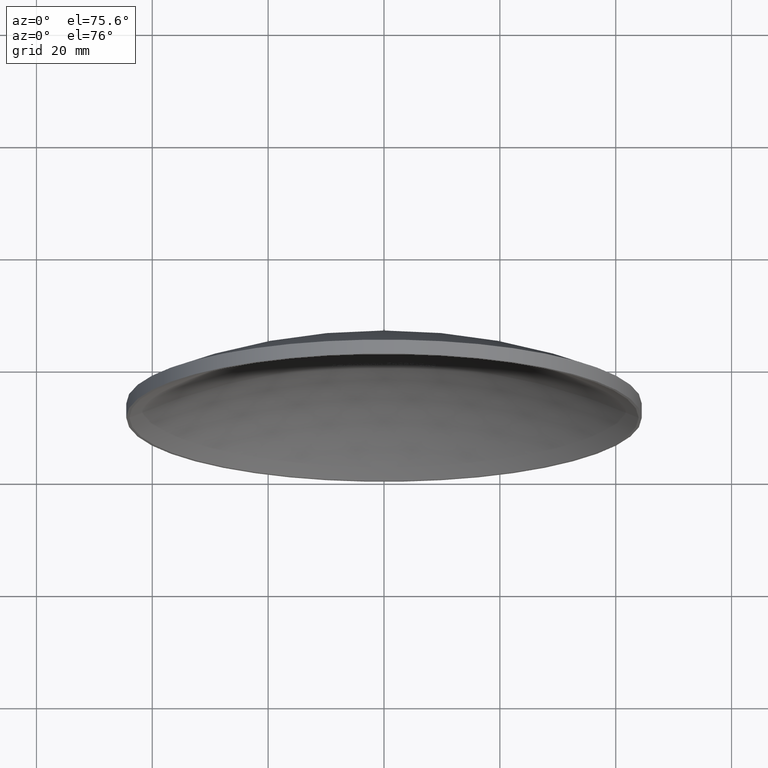
[diagram: clean part render]
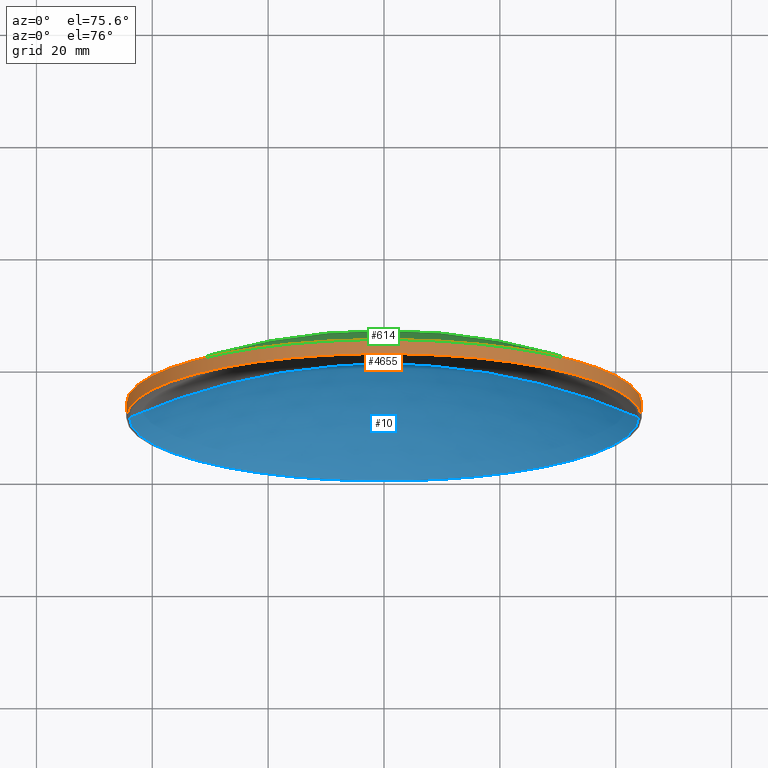
[diagram: same view with three faces highlighted in distinct colors, each labeled with its STEP entity id]
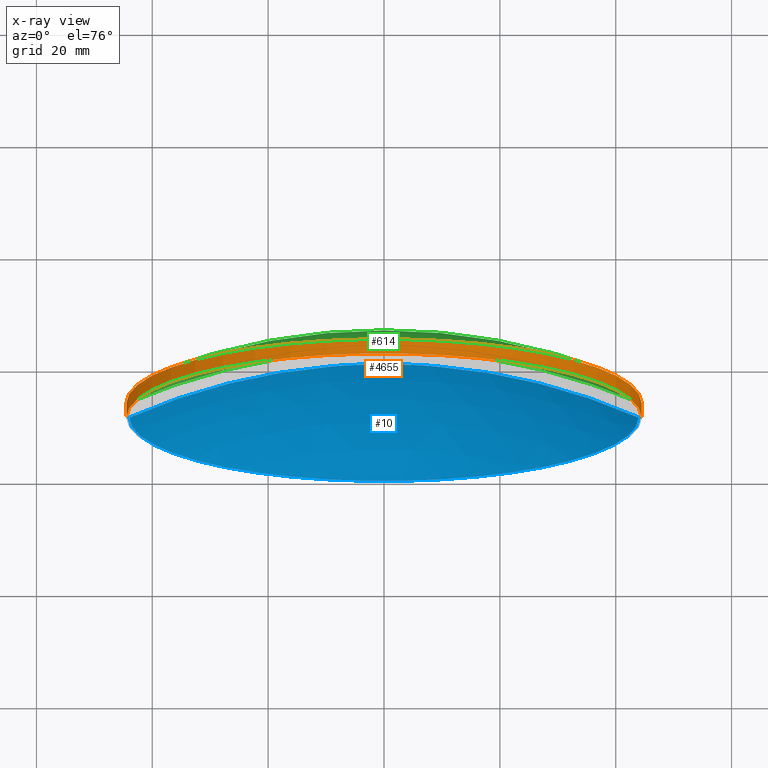
[diagram: x-ray of the same camera — body ghosted, the three highlighted faces saturated]
A machine part, auxiliary view with three faces highlighted in distinct colors.
The next image is the same camera in x-ray (body ghosted, the three faces saturated) — at least one of them is partly hidden behind the body in this view.
Their STEP definitions:

[orange] entity #4655 — the highlighted cylindrical surface (partial cylindrical patch) has radius 44.5 mm, axis along (-0, -1, -0).
#207 = DIRECTION ( 'NONE',  ( -9.745610317425236300E-015, -1.000000000000000000, -0.0000000000000000000 ) ) ;
#973 = VERTEX_POINT ( 'NONE', #11027 ) ;
#2111 = EDGE_CURVE ( 'NONE', #2183, #9338, #7220, .T. ) ;
#2183 = VERTEX_POINT ( 'NONE', #6033 ) ;
#2250 = ORIENTED_EDGE ( 'NONE', *, *, #2111, .F. ) ;
#2531 = VECTOR ( 'NONE', #12362, 1000.000000000000000 ) ;
#2902 = DIRECTION ( 'NONE',  ( -9.745610317425236300E-015, -1.000000000000000000, -0.0000000000000000000 ) ) ;
#3147 = ORIENTED_EDGE ( 'NONE', *, *, #12634, .T. ) ;
#3459 = CIRCLE ( 'NONE', #10609, 44.50000000000008500 ) ;
#3638 = VERTEX_POINT ( 'NONE', #8086 ) ;
#3819 = CARTESIAN_POINT ( 'NONE',  ( 44.50000000000000000, 1.209868777898162500E-018, 0.0000000000000000000 ) ) ;
#4387 = AXIS2_PLACEMENT_3D ( 'NONE', #13176, #4811, #12200 ) ;
#4603 = CYLINDRICAL_SURFACE ( 'NONE', #8331, 44.50000000000007800 ) ;
#4655 = ADVANCED_FACE ( 'NONE', ( #13248 ), #4603, .T. ) ;
#4811 = DIRECTION ( 'NONE',  ( -9.745610317425236300E-015, -1.000000000000000000, -0.0000000000000000000 ) ) ;
#5484 = EDGE_CURVE ( 'NONE', #973, #3638, #11107, .T. ) ;
#6033 = CARTESIAN_POINT ( 'NONE',  ( 44.50000000000000000, 2.499999999999988500, 0.0000000000000000000 ) ) ;
#6187 = CARTESIAN_POINT ( 'NONE',  ( 44.50000000000007800, 9.499999999999561200, 0.0000000000000000000 ) ) ;
#6573 = EDGE_CURVE ( 'NONE', #9338, #3638, #3459, .T. ) ;
#6724 = CIRCLE ( 'NONE', #4387, 44.50000000000006400 ) ;
#6968 = CARTESIAN_POINT ( 'NONE',  ( 0.0000000000000000000, 9.499999999999994700, 0.0000000000000000000 ) ) ;
#7220 = LINE ( 'NONE', #6187, #2531 ) ;
#7266 = DIRECTION ( 'NONE',  ( 1.000000000000000000, -9.745610317425236300E-015, 0.0000000000000000000 ) ) ;
#7406 = CARTESIAN_POINT ( 'NONE',  ( -44.50000000000007800, 9.500000000000428100, 5.449678256205732200E-015 ) ) ;
#7528 = VECTOR ( 'NONE', #207, 1000.000000000000000 ) ;
#8086 = CARTESIAN_POINT ( 'NONE',  ( -44.50000000000017100, 8.673605281196255000E-013, 5.449678256205733800E-015 ) ) ;
#8163 = DIRECTION ( 'NONE',  ( -9.745610317425236300E-015, -1.000000000000000000, -0.0000000000000000000 ) ) ;
#8331 = AXIS2_PLACEMENT_3D ( 'NONE', #6968, #2902, #11061 ) ;
#9012 = ORIENTED_EDGE ( 'NONE', *, *, #5484, .T. ) ;
#9338 = VERTEX_POINT ( 'NONE', #3819 ) ;
#10609 = AXIS2_PLACEMENT_3D ( 'NONE', #13404, #8163, #7266 ) ;
#10837 = ORIENTED_EDGE ( 'NONE', *, *, #6573, .F. ) ;
#11027 = CARTESIAN_POINT ( 'NONE',  ( -44.50000000000013500, 2.500000000000855800, 5.449678256205731400E-015 ) ) ;
#11061 = DIRECTION ( 'NONE',  ( 1.000000000000000000, -9.745637505487662800E-015, 0.0000000000000000000 ) ) ;
#11107 = LINE ( 'NONE', #7406, #7528 ) ;
#11889 = EDGE_LOOP ( 'NONE', ( #3147, #9012, #10837, #2250 ) ) ;
#12200 = DIRECTION ( 'NONE',  ( 1.000000000000000000, -9.745637505487665900E-015, 0.0000000000000000000 ) ) ;
#12362 = DIRECTION ( 'NONE',  ( -9.745610317425236300E-015, -1.000000000000000000, -0.0000000000000000000 ) ) ;
#12634 = EDGE_CURVE ( 'NONE', #2183, #973, #6724, .T. ) ;
#13176 = CARTESIAN_POINT ( 'NONE',  ( -6.821927222197248700E-014, 2.500000000000421900, 0.0000000000000000000 ) ) ;
#13248 = FACE_OUTER_BOUND ( 'NONE', #11889, .T. ) ;
#13404 = CARTESIAN_POINT ( 'NONE',  ( -9.258329801553546800E-014, 4.336808689942017700E-013, 0.0000000000000000000 ) ) ;

[blue] entity #10 — the highlighted spherical surface has radius 106.474 mm.
#10 = ADVANCED_FACE ( 'NONE', ( #10039 ), #2084, .F. ) ;
#17 = DIRECTION ( 'NONE',  ( 0.0000000000000000000, -0.0000000000000000000, 1.000000000000000000 ) ) ;
#48 = AXIS2_PLACEMENT_3D ( 'NONE', #5720, #6765, #3778 ) ;
#72 = CARTESIAN_POINT ( 'NONE',  ( 2.436402579356311000E-014, -96.97368421052624400, 0.0000000000000000000 ) ) ;
#73 = CIRCLE ( 'NONE', #5911, 106.4736842105262200 ) ;
#101 = CIRCLE ( 'NONE', #7334, 106.4736842105262200 ) ;
#106 = CARTESIAN_POINT ( 'NONE',  ( -5.984396788380638400, 9.331688740666825400, -0.01493510266288249600 ) ) ;
#123 = VERTEX_POINT ( 'NONE', #7988 ) ;
#174 = AXIS2_PLACEMENT_3D ( 'NONE', #8329, #3171, #10702 ) ;
#189 = CARTESIAN_POINT ( 'NONE',  ( -3.807625534188006100, 9.431895610995624700, 8.687283515989661900E-015 ) ) ;
#217 = CARTESIAN_POINT ( 'NONE',  ( 4.014926204471703600, 9.424278500179342500, -0.02092864454098966300 ) ) ;
#247 = CARTESIAN_POINT ( 'NONE',  ( 3.815099556682857600, 9.431629283616691900, -0.03103221658340227900 ) ) ;
#361 = CARTESIAN_POINT ( 'NONE',  ( -1.043068910256384400, 9.494890667750954800, 6.583189521834967500E-015 ) ) ;
#428 = ORIENTED_EDGE ( 'NONE', *, *, #1643, .T. ) ;
#467 = ORIENTED_EDGE ( 'NONE', *, *, #1500, .T. ) ;
#515 = DIRECTION ( 'NONE',  ( -1.000000000000000000, 0.0000000000000000000, 1.224646799147353500E-016 ) ) ;
#535 = EDGE_CURVE ( 'NONE', #9709, #10664, #11326, .T. ) ;
#562 = CARTESIAN_POINT ( 'NONE',  ( -3.050874170042095400, 9.456281276593493600, -0.01660671022068103300 ) ) ;
#567 = VERTEX_POINT ( 'NONE', #10042 ) ;
#573 = CARTESIAN_POINT ( 'NONE',  ( 2.436402579356311000E-014, -96.97368421052624400, 0.0000000000000000000 ) ) ;
#585 = CARTESIAN_POINT ( 'NONE',  ( -0.4324919871794586900, 9.499121613514510900, 0.0000000000000000000 ) ) ;
#625 = VERTEX_POINT ( 'NONE', #12367 ) ;
#649 = DIRECTION ( 'NONE',  ( 1.000000000000000000, 0.0000000000000000000, 0.0000000000000000000 ) ) ;
#650 = EDGE_CURVE ( 'NONE', #8898, #6773, #7982, .T. ) ;
#691 = DIRECTION ( 'NONE',  ( 0.0000000000000000000, -0.0000000000000000000, 1.000000000000000000 ) ) ;
#694 = CARTESIAN_POINT ( 'NONE',  ( 0.9287025683087346600, 9.495952344209529300, -0.02055953111510495600 ) ) ;
#711 = EDGE_CURVE ( 'NONE', #2003, #8543, #11218, .T. ) ;
#728 = EDGE_CURVE ( 'NONE', #737, #1221, #11074, .T. ) ;
#737 = VERTEX_POINT ( 'NONE', #11833 ) ;
#755 = CIRCLE ( 'NONE', #7289, 106.4736842105262200 ) ;
#756 = AXIS2_PLACEMENT_3D ( 'NONE', #5256, #11395, #4051 ) ;
#766 = VERTEX_POINT ( 'NONE', #2905 ) ;
#774 = ORIENTED_EDGE ( 'NONE', *, *, #4227, .T. ) ;
#801 = DIRECTION ( 'NONE',  ( 1.000000000000000000, 0.0000000000000000000, 0.0000000000000000000 ) ) ;
#819 = EDGE_CURVE ( 'NONE', #567, #6581, #6024, .T. ) ;
#844 = EDGE_CURVE ( 'NONE', #13385, #13369, #12045, .T. ) ;
#862 = CARTESIAN_POINT ( 'NONE',  ( 8.557882194845111800, 9.155515028287545900, -0.03392094017094031400 ) ) ;
#889 = EDGE_CURVE ( 'NONE', #8850, #9806, #8630, .T. ) ;
#904 = ORIENTED_EDGE ( 'NONE', *, *, #7593, .T. ) ;
#982 = CARTESIAN_POINT ( 'NONE',  ( -6.005954193865521000, 9.330472812092107700, -0.01613077847631853200 ) ) ;
#990 = CARTESIAN_POINT ( 'NONE',  ( 0.6348561552208008600, 9.498107250205601200, 8.338711705407094100E-006 ) ) ;
#1057 = CIRCLE ( 'NONE', #4862, 106.4399770921491800 ) ;
#1104 = DIRECTION ( 'NONE',  ( 0.0000000000000000000, 0.0000000000000000000, 1.000000000000000000 ) ) ;
#1153 = DIRECTION ( 'NONE',  ( 0.0000000000000000000, -0.0000000000000000000, 1.000000000000000000 ) ) ;
#1221 = VERTEX_POINT ( 'NONE', #1821 ) ;
#1232 = ORIENTED_EDGE ( 'NONE', *, *, #7561, .T. ) ;
#1270 = EDGE_CURVE ( 'NONE', #4497, #737, #3438, .T. ) ;
#1343 = EDGE_CURVE ( 'NONE', #8049, #12083, #10747, .T. ) ;
#1353 = CARTESIAN_POINT ( 'NONE',  ( -5.639356303418771300, 9.350551454941639300, 3.453109823117274500E-016 ) ) ;
#1399 = EDGE_CURVE ( 'NONE', #2557, #12330, #12519, .T. ) ;
#1415 = CARTESIAN_POINT ( 'NONE',  ( -3.066134982638857300, 9.455841570497305800, -0.01696047008546990700 ) ) ;
#1478 = CARTESIAN_POINT ( 'NONE',  ( 4.740451388888918600, 9.394414387513284800, -0.03392094017093728200 ) ) ;
#1494 = AXIS2_PLACEMENT_3D ( 'NONE', #573, #7805, #10992 ) ;
#1500 = EDGE_CURVE ( 'NONE', #13381, #13280, #9808, .T. ) ;
#1643 = EDGE_CURVE ( 'NONE', #13280, #9523, #2753, .T. ) ;
#1645 = EDGE_CURVE ( 'NONE', #11731, #8898, #9501, .T. ) ;
#1651 = CARTESIAN_POINT ( 'NONE',  ( 8.498579380368058300, 9.160297318681449100, -0.03291418990580675200 ) ) ;
#1695 = ORIENTED_EDGE ( 'NONE', *, *, #11525, .T. ) ;
#1700 = DIRECTION ( 'NONE',  ( 1.000000000000000000, 0.0000000000000000000, 0.0000000000000000000 ) ) ;
#1707 = CARTESIAN_POINT ( 'NONE',  ( -6.127850786498279400, 9.323524046746030100, -0.01005515189614132600 ) ) ;
#1716 = CARTESIAN_POINT ( 'NONE',  ( 2.436402579356311000E-014, -96.97368421052624400, 0.0000000000000000000 ) ) ;
#1767 = CARTESIAN_POINT ( 'NONE',  ( -3.199792718591958400, 9.451908312733373000, -2.125785824825924300E-006 ) ) ;
#1781 = CARTESIAN_POINT ( 'NONE',  ( 2.436402579356311000E-014, -96.97368421052624400, 0.0000000000000000000 ) ) ;
#1810 = DIRECTION ( 'NONE',  ( 1.000000000000000000, 0.0000000000000000000, 0.0000000000000000000 ) ) ;
#1821 = CARTESIAN_POINT ( 'NONE',  ( -4.587807158119638000, 9.401112874322603100, 2.809221675648910500E-016 ) ) ;
#1830 = AXIS2_PLACEMENT_3D ( 'NONE', #2827, #8161, #1967 ) ;
#1843 = CIRCLE ( 'NONE', #756, 106.4736842105262200 ) ;
#1853 = CIRCLE ( 'NONE', #11822, 106.4736842105262200 ) ;
#1892 = AXIS2_PLACEMENT_3D ( 'NONE', #4461, #7378, #12685 ) ;
#1908 = DIRECTION ( 'NONE',  ( 1.000000000000000000, 0.0000000000000000000, 0.0000000000000000000 ) ) ;
#1932 = EDGE_CURVE ( 'NONE', #6244, #9806, #3159, .T. ) ;
#1943 = DIRECTION ( 'NONE',  ( 0.0000000000000000000, 0.0000000000000000000, 1.000000000000000000 ) ) ;
#1960 = CARTESIAN_POINT ( 'NONE',  ( -5.895884275263939300, 9.336634983563463700, -1.207594793096409200E-006 ) ) ;
#1967 = DIRECTION ( 'NONE',  ( 1.000000000000000000, 0.0000000000000000000, 0.0000000000000000000 ) ) ;
#1986 = AXIS2_PLACEMENT_3D ( 'NONE', #4684, #6670, #9736 ) ;
#2003 = VERTEX_POINT ( 'NONE', #4841 ) ;
#2044 = CARTESIAN_POINT ( 'NONE',  ( 2.436402579356311000E-014, -96.97368421052624400, 0.0000000000000000000 ) ) ;
#2057 = DIRECTION ( 'NONE',  ( 1.000000000000000000, 0.0000000000000000000, 0.0000000000000000000 ) ) ;
#2061 = CARTESIAN_POINT ( 'NONE',  ( 2.436402579356311000E-014, -96.97368421052624400, 0.0000000000000000000 ) ) ;
#2070 = CARTESIAN_POINT ( 'NONE',  ( -6.034217247596123100, 9.328871562672961900, -0.01696047008546938300 ) ) ;
#2084 = SPHERICAL_SURFACE ( 'NONE', #48, 106.4736842105262200 ) ;
#2103 = CARTESIAN_POINT ( 'NONE',  ( 2.436402579356311000E-014, -96.97368421052624400, 0.0000000000000000000 ) ) ;
#2153 = DIRECTION ( 'NONE',  ( 1.000000000000000000, -9.745610317425236300E-015, 0.0000000000000000000 ) ) ;
#2168 = DIRECTION ( 'NONE',  ( 0.0000000000000000000, -0.0000000000000000000, 1.000000000000000000 ) ) ;
#2179 = CIRCLE ( 'NONE', #9918, 106.4736842105262200 ) ;
#2205 = CARTESIAN_POINT ( 'NONE',  ( 0.7712332085275059900, 9.497202678069321300, -0.03272299519262192300 ) ) ;
#2222 = DIRECTION ( 'NONE',  ( 0.0000000000000000000, 0.0000000000000000000, 1.000000000000000000 ) ) ;
#2285 = EDGE_CURVE ( 'NONE', #766, #10513, #7544, .T. ) ;
#2415 = CARTESIAN_POINT ( 'NONE',  ( 3.745044044907106500, 9.434120607131049500, -0.02015940869744548700 ) ) ;
#2470 = AXIS2_PLACEMENT_3D ( 'NONE', #2103, #1153, #2057 ) ;
#2481 = CARTESIAN_POINT ( 'NONE',  ( -3.066134982638857300, 9.455841570497305800, -0.01696047008546990700 ) ) ;
#2535 = CIRCLE ( 'NONE', #13308, 43.96305266925860900 ) ;
#2537 = ORIENTED_EDGE ( 'NONE', *, *, #12854, .T. ) ;
#2545 = CARTESIAN_POINT ( 'NONE',  ( 3.683033407775201200, 9.436280975433756900, -1.053728577181029500E-005 ) ) ;
#2557 = VERTEX_POINT ( 'NONE', #10880 ) ;
#2572 = CARTESIAN_POINT ( 'NONE',  ( 2.436402579356311000E-014, -96.97368421052624400, 0.0000000000000000000 ) ) ;
#2583 = ORIENTED_EDGE ( 'NONE', *, *, #711, .T. ) ;
#2731 = CARTESIAN_POINT ( 'NONE',  ( 2.436402579356311000E-014, -96.97368421052624400, 0.0000000000000000000 ) ) ;
#2753 = B_SPLINE_CURVE_WITH_KNOTS ( 'NONE', 3,
 ( #13291, #11325, #8315, #7234 ),
 .UNSPECIFIED., .F., .F.,
 ( 4, 4 ),
 ( 0.0000000000000000000, 0.1804175063185507500 ),
 .UNSPECIFIED. ) ;
#2827 = CARTESIAN_POINT ( 'NONE',  ( 2.436402579356311000E-014, -96.97368421052624400, 0.0000000000000000000 ) ) ;
#2842 = CARTESIAN_POINT ( 'NONE',  ( 2.436402579356311000E-014, -96.97368421052624400, 0.0000000000000000000 ) ) ;
#2848 = DIRECTION ( 'NONE',  ( -1.224646799147353200E-016, 1.193493048097223700E-030, -1.000000000000000000 ) ) ;
#2887 = DIRECTION ( 'NONE',  ( 1.000000000000000000, 0.0000000000000000000, 0.0000000000000000000 ) ) ;
#2905 = CARTESIAN_POINT ( 'NONE',  ( 7.844217414529938800, 9.210654006163922600, 6.021595708406543400E-015 ) ) ;
#2955 = AXIS2_PLACEMENT_3D ( 'NONE', #4198, #2168, #10292 ) ;
#2998 = CARTESIAN_POINT ( 'NONE',  ( -5.918448424521238300, 9.335383644957097700, -0.005822154474540129800 ) ) ;
#3029 = VERTEX_POINT ( 'NONE', #361 ) ;
#3030 = AXIS2_PLACEMENT_3D ( 'NONE', #13211, #13310, #3907 ) ;
#3051 = AXIS2_PLACEMENT_3D ( 'NONE', #72, #10372, #4122 ) ;
#3095 = DIRECTION ( 'NONE',  ( -1.224646799147353200E-016, 1.193493048097223700E-030, -1.000000000000000000 ) ) ;
#3125 = CARTESIAN_POINT ( 'NONE',  ( -5.941291456818972500, 9.334109151108855000, -0.01010802963484796300 ) ) ;
#3159 = B_SPLINE_CURVE_WITH_KNOTS ( 'NONE', 3,
 ( #9578, #11661, #247, #2415, #5428, #7578 ),
 .UNSPECIFIED., .F., .F.,
 ( 4, 2, 4 ),
 ( 0.0000000000000000000, 0.1488913392024207000, 0.2977826784048414100 ),
 .UNSPECIFIED. ) ;
#3171 = DIRECTION ( 'NONE',  ( 0.0000000000000000000, 0.0000000000000000000, 1.000000000000000000 ) ) ;
#3180 = ORIENTED_EDGE ( 'NONE', *, *, #7652, .T. ) ;
#3192 = CIRCLE ( 'NONE', #5868, 106.4736842105262200 ) ;
#3226 = CARTESIAN_POINT ( 'NONE',  ( 2.436402579356311000E-014, -96.97368421052624400, 0.0000000000000000000 ) ) ;
#3241 = EDGE_CURVE ( 'NONE', #5413, #13153, #755, .T. ) ;
#3249 = CARTESIAN_POINT ( 'NONE',  ( 0.6866694506777203400, 9.497788161506541400, -0.01999447363900764100 ) ) ;
#3262 = DIRECTION ( 'NONE',  ( 0.0000000000000000000, 0.0000000000000000000, 1.000000000000000000 ) ) ;
#3332 = CARTESIAN_POINT ( 'NONE',  ( 0.8021772335737408200, 9.496972735031375700, -0.03392094017094014800 ) ) ;
#3397 = CARTESIAN_POINT ( 'NONE',  ( -7.612335987580097600, 9.227528035462299300, -0.01696047008547008100 ) ) ;
#3430 = AXIS2_PLACEMENT_3D ( 'NONE', #4916, #4739, #8010 ) ;
#3438 = CIRCLE ( 'NONE', #8764, 106.4736842105262200 ) ;
#3467 = CARTESIAN_POINT ( 'NONE',  ( 2.436402579356311000E-014, -96.97368421052624400, 0.0000000000000000000 ) ) ;
#3480 = ORIENTED_EDGE ( 'NONE', *, *, #12613, .T. ) ;
#3481 = ORIENTED_EDGE ( 'NONE', *, *, #6165, .T. ) ;
#3491 = ORIENTED_EDGE ( 'NONE', *, *, #5031, .T. ) ;
#3499 = ORIENTED_EDGE ( 'NONE', *, *, #11680, .F. ) ;
#3557 = CARTESIAN_POINT ( 'NONE',  ( -6.167897815390824200, 9.321200209126308400, 1.188167850058585200E-006 ) ) ;
#3558 = B_SPLINE_CURVE_WITH_KNOTS ( 'NONE', 3,
 ( #6704, #9867, #3630, #4812 ),
 .UNSPECIFIED., .F., .F.,
 ( 4, 4 ),
 ( 0.8209200829145002500, 1.000000000000000000 ),
 .UNSPECIFIED. ) ;
#3579 = CARTESIAN_POINT ( 'NONE',  ( 2.436402579356311000E-014, -96.97368421052624400, 0.0000000000000000000 ) ) ;
#3616 = CARTESIAN_POINT ( 'NONE',  ( -2.927818091833436200, 9.459737700805375100, -3.283626060288934200E-006 ) ) ;
#3630 = CARTESIAN_POINT ( 'NONE',  ( 8.617778055825963800, 9.150685516490971900, -0.03305119575368432200 ) ) ;
#3650 = ORIENTED_EDGE ( 'NONE', *, *, #650, .T. ) ;
#3655 = CARTESIAN_POINT ( 'NONE',  ( -6.083278851645147300, 9.326086815061508200, -0.01562860452106726000 ) ) ;
#3667 = CARTESIAN_POINT ( 'NONE',  ( -2.950466948054093900, 9.459114716645277800, -0.005843158992507727300 ) ) ;
#3718 = CARTESIAN_POINT ( 'NONE',  ( -2.973117184209350200, 9.458484090688683600, -0.01009577495716508200 ) ) ;
#3740 = EDGE_CURVE ( 'NONE', #1221, #11101, #8865, .T. ) ;
#3750 = DIRECTION ( 'NONE',  ( -1.000000000000000000, 0.0000000000000000000, 1.224646799147353500E-016 ) ) ;
#3777 = CARTESIAN_POINT ( 'NONE',  ( -7.752079712731115200, 9.217420193589472200, -4.180806917102760600E-006 ) ) ;
#3778 = DIRECTION ( 'NONE',  ( -1.000000000000000000, 9.775505499819881100E-015, 0.0000000000000000000 ) ) ;
#3870 = EDGE_CURVE ( 'NONE', #10664, #12752, #2535, .T. ) ;
#3879 = AXIS2_PLACEMENT_3D ( 'NONE', #13336, #8144, #1908 ) ;
#3907 = DIRECTION ( 'NONE',  ( 1.000000000000000000, 0.0000000000000000000, 0.0000000000000000000 ) ) ;
#3918 = DIRECTION ( 'NONE',  ( 0.0000000000000000000, 0.0000000000000000000, 1.000000000000000000 ) ) ;
#3943 = EDGE_CURVE ( 'NONE', #13369, #6581, #12133, .T. ) ;
#3962 = CIRCLE ( 'NONE', #1494, 106.4736842105262200 ) ;
#3998 = DIRECTION ( 'NONE',  ( 0.0000000000000000000, -0.0000000000000000000, 1.000000000000000000 ) ) ;
#4023 = DIRECTION ( 'NONE',  ( 0.0000000000000000000, 0.0000000000000000000, 1.000000000000000000 ) ) ;
#4051 = DIRECTION ( 'NONE',  ( 1.000000000000000000, 0.0000000000000000000, 0.0000000000000000000 ) ) ;
#4122 = DIRECTION ( 'NONE',  ( 1.000000000000000000, 0.0000000000000000000, 0.0000000000000000000 ) ) ;
#4129 = VERTEX_POINT ( 'NONE', #4680 ) ;
#4141 = CARTESIAN_POINT ( 'NONE',  ( 4.078093222644022300, 9.421872893618541400, 9.356339218457094600E-009 ) ) ;
#4158 = ORIENTED_EDGE ( 'NONE', *, *, #9921, .T. ) ;
#4166 = CARTESIAN_POINT ( 'NONE',  ( 2.436402579356311000E-014, -96.97368421052624400, 0.0000000000000000000 ) ) ;
#4167 = VERTEX_POINT ( 'NONE', #585 ) ;
#4198 = CARTESIAN_POINT ( 'NONE',  ( 2.436402579356311000E-014, -96.97368421052624400, 0.0000000000000000000 ) ) ;
#4227 = EDGE_CURVE ( 'NONE', #13158, #9709, #7053, .T. ) ;
#4242 = EDGE_CURVE ( 'NONE', #13385, #6582, #13394, .T. ) ;
#4286 = ORIENTED_EDGE ( 'NONE', *, *, #5255, .T. ) ;
#4342 = CARTESIAN_POINT ( 'NONE',  ( 2.436402579356311000E-014, -96.97368421052624400, 0.0000000000000000000 ) ) ;
#4372 = CARTESIAN_POINT ( 'NONE',  ( -7.493825364042415100, 9.235960310207273600, -0.006254521743601189200 ) ) ;
#4442 = CARTESIAN_POINT ( 'NONE',  ( -43.96305266925761400, 8.517342672609945100E-013, 0.0000000000000000000 ) ) ;
#4447 = DIRECTION ( 'NONE',  ( 0.8209519386403085800, 0.0000000000000000000, -0.5709972981045698900 ) ) ;
#4453 = CIRCLE ( 'NONE', #8132, 106.4736842105262200 ) ;
#4461 = CARTESIAN_POINT ( 'NONE',  ( 2.436402579356311000E-014, -96.97368421052624400, 0.0000000000000000000 ) ) ;
#4497 = VERTEX_POINT ( 'NONE', #4525 ) ;
#4507 = DIRECTION ( 'NONE',  ( 0.0000000000000000000, 0.0000000000000000000, 1.000000000000000000 ) ) ;
#4515 = DIRECTION ( 'NONE',  ( -1.224646799147353200E-016, 1.193493048097223700E-030, -1.000000000000000000 ) ) ;
#4525 = CARTESIAN_POINT ( 'NONE',  ( -3.926348824786296100, 9.427580886600118500, 2.404195260305903300E-016 ) ) ;
#4544 = CARTESIAN_POINT ( 'NONE',  ( 1.529666059021214300, -96.97368421052624400, 2.199278912167020600 ) ) ;
#4564 = CARTESIAN_POINT ( 'NONE',  ( 4.078093222644022300, 9.421872893618541400, 9.356339218457094600E-009 ) ) ;
#4589 = CIRCLE ( 'NONE', #3051, 106.4736842105262200 ) ;
#4596 = DIRECTION ( 'NONE',  ( 1.000000000000000000, 0.0000000000000000000, 0.0000000000000000000 ) ) ;
#4641 = CARTESIAN_POINT ( 'NONE',  ( -3.159402113543327700, 9.453122753137769500, -0.01013928357933583300 ) ) ;
#4669 = ORIENTED_EDGE ( 'NONE', *, *, #2285, .F. ) ;
#4673 = ORIENTED_EDGE ( 'NONE', *, *, #8420, .T. ) ;
#4680 = CARTESIAN_POINT ( 'NONE',  ( -0.3137686965811724000, 9.499537674452454900, 6.538817310314356800E-015 ) ) ;
#4684 = CARTESIAN_POINT ( 'NONE',  ( 2.436402579356311000E-014, -96.97368421052624400, 0.0000000000000000000 ) ) ;
#4699 = CARTESIAN_POINT ( 'NONE',  ( -3.037855634602491400, 9.456653188741500000, -0.01612964652484973400 ) ) ;
#4711 = AXIS2_PLACEMENT_3D ( 'NONE', #1716, #12050, #5843 ) ;
#4739 = DIRECTION ( 'NONE',  ( -1.224646799147353200E-016, 1.193493048097223700E-030, -1.000000000000000000 ) ) ;
#4781 = CARTESIAN_POINT ( 'NONE',  ( -6.034217247596123100, 9.328871562672961900, -0.01696047008546938300 ) ) ;
#4798 = EDGE_CURVE ( 'NONE', #625, #13381, #8848, .T. ) ;
#4812 = CARTESIAN_POINT ( 'NONE',  ( 8.557882194845111800, 9.155515028287545900, -0.03392094017094031400 ) ) ;
#4825 = CIRCLE ( 'NONE', #3430, 106.4736842105262200 ) ;
#4841 = CARTESIAN_POINT ( 'NONE',  ( -2.927818091833436200, 9.459737700805375100, -3.283626060288934200E-006 ) ) ;
#4854 = CARTESIAN_POINT ( 'NONE',  ( -7.612335987580097600, 9.227528035462299300, -0.01696047008547008100 ) ) ;
#4862 = AXIS2_PLACEMENT_3D ( 'NONE', #4544, #5497, #4447 ) ;
#4884 = B_SPLINE_CURVE_WITH_KNOTS ( 'NONE', 3,
 ( #1960, #2998, #3125, #11295, #106, #982, #7256, #7155 ),
 .UNSPECIFIED., .F., .F.,
 ( 4, 2, 2, 4 ),
 ( 0.6915283748657303800, 0.8457641874328651900, 0.9228820937164325900, 1.000000000000000000 ),
 .UNSPECIFIED. ) ;
#4891 = CARTESIAN_POINT ( 'NONE',  ( 2.436402579356311000E-014, -96.97368421052624400, 0.0000000000000000000 ) ) ;
#4916 = CARTESIAN_POINT ( 'NONE',  ( 2.436402579356311000E-014, -96.97368421052624400, 0.0000000000000000000 ) ) ;
#4958 = VERTEX_POINT ( 'NONE', #5353 ) ;
#4978 = EDGE_CURVE ( 'NONE', #8246, #5584, #1057, .T. ) ;
#4995 = ORIENTED_EDGE ( 'NONE', *, *, #3740, .T. ) ;
#5026 = CARTESIAN_POINT ( 'NONE',  ( -7.469832939172667000, 9.237647614709617400, -3.114943121444696600E-006 ) ) ;
#5029 = CARTESIAN_POINT ( 'NONE',  ( -1.551883012820486600, 9.488689840015107200, 9.502542821515231600E-017 ) ) ;
#5031 = EDGE_CURVE ( 'NONE', #10618, #11731, #13229, .T. ) ;
#5046 = EDGE_CURVE ( 'NONE', #10636, #7376, #1853, .T. ) ;
#5080 = EDGE_CURVE ( 'NONE', #12330, #2003, #6538, .T. ) ;
#5198 = DIRECTION ( 'NONE',  ( 0.0000000000000000000, -0.0000000000000000000, 1.000000000000000000 ) ) ;
#5255 = EDGE_CURVE ( 'NONE', #4129, #4167, #4589, .T. ) ;
#5256 = CARTESIAN_POINT ( 'NONE',  ( 2.436402579356311000E-014, -96.97368421052624400, 0.0000000000000000000 ) ) ;
#5265 = CARTESIAN_POINT ( 'NONE',  ( 3.965616411238400900, 9.426121996551033900, -0.02885227054933481700 ) ) ;
#5351 = CARTESIAN_POINT ( 'NONE',  ( 3.917739115973955900, 9.427893573297875900, -0.03262291424766186600 ) ) ;
#5353 = CARTESIAN_POINT ( 'NONE',  ( -3.199792718591958400, 9.451908312733373000, -2.125785824825924300E-006 ) ) ;
#5397 = ORIENTED_EDGE ( 'NONE', *, *, #5080, .T. ) ;
#5413 = VERTEX_POINT ( 'NONE', #9443 ) ;
#5425 = CIRCLE ( 'NONE', #1892, 106.4736842105262200 ) ;
#5428 = CARTESIAN_POINT ( 'NONE',  ( 3.714404935484465900, 9.435195167210663300, -0.01252088376063058800 ) ) ;
#5445 = ORIENTED_EDGE ( 'NONE', *, *, #1645, .T. ) ;
#5497 = DIRECTION ( 'NONE',  ( 0.5709972981045700100, -1.379189260721965500E-015, 0.8209519386403086900 ) ) ;
#5536 = AXIS2_PLACEMENT_3D ( 'NONE', #4342, #11690, #6503 ) ;
#5554 = CIRCLE ( 'NONE', #10361, 106.4736842105262200 ) ;
#5584 = VERTEX_POINT ( 'NONE', #6946 ) ;
#5585 = CIRCLE ( 'NONE', #8958, 106.4736842105262200 ) ;
#5598 = CARTESIAN_POINT ( 'NONE',  ( -3.016302904638131600, 9.457266361666219400, -0.01493422745467999600 ) ) ;
#5657 = DIRECTION ( 'NONE',  ( 1.000000000000000000, 0.0000000000000000000, 0.0000000000000000000 ) ) ;
#5698 = DIRECTION ( 'NONE',  ( 0.0000000000000000000, -0.0000000000000000000, 1.000000000000000000 ) ) ;
#5708 = AXIS2_PLACEMENT_3D ( 'NONE', #7100, #1943, #8279 ) ;
#5709 = CARTESIAN_POINT ( 'NONE',  ( 8.447100498560331500, 9.164407169621926000, -0.02277560729777620300 ) ) ;
#5720 = CARTESIAN_POINT ( 'NONE',  ( 2.436402579356311000E-014, -96.97368421052624400, 0.0000000000000000000 ) ) ;
#5742 = ORIENTED_EDGE ( 'NONE', *, *, #4978, .T. ) ;
#5783 = CARTESIAN_POINT ( 'NONE',  ( 2.436402579356311000E-014, -96.97368421052624400, 0.0000000000000000000 ) ) ;
#5843 = DIRECTION ( 'NONE',  ( -1.000000000000000000, 0.0000000000000000000, 1.224646799147353500E-016 ) ) ;
#5853 = AXIS2_PLACEMENT_3D ( 'NONE', #1781, #11030, #9941 ) ;
#5868 = AXIS2_PLACEMENT_3D ( 'NONE', #7189, #1104, #12370 ) ;
#5877 = CARTESIAN_POINT ( 'NONE',  ( 0.9897538480558230000, 9.495399610218669300, -9.317378449922560800E-007 ) ) ;
#5911 = AXIS2_PLACEMENT_3D ( 'NONE', #8505, #2222, #6459 ) ;
#5965 = CARTESIAN_POINT ( 'NONE',  ( -5.895884275263939300, 9.336634983563463700, -1.207594793096409200E-006 ) ) ;
#6024 = CIRCLE ( 'NONE', #4711, 106.4736842105262200 ) ;
#6087 = EDGE_CURVE ( 'NONE', #9523, #13158, #11407, .T. ) ;
#6096 = ORIENTED_EDGE ( 'NONE', *, *, #5046, .F. ) ;
#6107 = CARTESIAN_POINT ( 'NONE',  ( 8.397068092549721600, 9.168365271020588700, 8.380777900757018100E-006 ) ) ;
#6135 = CARTESIAN_POINT ( 'NONE',  ( 2.145499465811992600, 9.478381346723804100, 6.386935114696637700E-015 ) ) ;
#6165 = EDGE_CURVE ( 'NONE', #11101, #10618, #73, .T. ) ;
#6190 = CARTESIAN_POINT ( 'NONE',  ( 2.436402579356311000E-014, -96.97368421052624400, 0.0000000000000000000 ) ) ;
#6244 = VERTEX_POINT ( 'NONE', #6643 ) ;
#6279 = DIRECTION ( 'NONE',  ( -9.745610317425236300E-015, -1.000000000000000000, -0.0000000000000000000 ) ) ;
#6296 = B_SPLINE_CURVE_WITH_KNOTS ( 'NONE', 3,
 ( #4781, #3655, #1707, #8967 ),
 .UNSPECIFIED., .F., .F.,
 ( 4, 4 ),
 ( 0.0000000000000000000, 0.1700435588758081000 ),
 .UNSPECIFIED. ) ;
#6328 = EDGE_CURVE ( 'NONE', #11496, #4497, #5554, .T. ) ;
#6376 = VERTEX_POINT ( 'NONE', #862 ) ;
#6396 = CARTESIAN_POINT ( 'NONE',  ( 3.882092598157077700, 9.429199377241307200, -0.03392094017094016100 ) ) ;
#6414 = AXIS2_PLACEMENT_3D ( 'NONE', #4166, #5198, #10367 ) ;
#6459 = DIRECTION ( 'NONE',  ( 1.000000000000000000, 0.0000000000000000000, 0.0000000000000000000 ) ) ;
#6461 = CARTESIAN_POINT ( 'NONE',  ( -7.596562391772026000, 9.228658714168338100, -0.01663393320263086000 ) ) ;
#6503 = DIRECTION ( 'NONE',  ( 1.000000000000000000, 0.0000000000000000000, 0.0000000000000000000 ) ) ;
#6538 = CIRCLE ( 'NONE', #13030, 106.4736842105262200 ) ;
#6541 = CARTESIAN_POINT ( 'NONE',  ( 4.763643961659954400, 9.393383651561819600, 6.585753258743897800E-008 ) ) ;
#6581 = VERTEX_POINT ( 'NONE', #990 ) ;
#6582 = VERTEX_POINT ( 'NONE', #9357 ) ;
#6600 = EDGE_CURVE ( 'NONE', #4958, #11496, #8493, .T. ) ;
#6631 = CARTESIAN_POINT ( 'NONE',  ( 6.979233440170969700, 9.271013209864865000, 8.674148574817403400E-015 ) ) ;
#6643 = CARTESIAN_POINT ( 'NONE',  ( 3.882092598157077700, 9.429199377241307200, -0.03392094017094016100 ) ) ;
#6657 = AXIS2_PLACEMENT_3D ( 'NONE', #2044, #7152, #13437 ) ;
#6661 = CARTESIAN_POINT ( 'NONE',  ( 4.755900338250679500, 9.393730449326005400, -0.01132562227390486300 ) ) ;
#6670 = DIRECTION ( 'NONE',  ( -1.224646799147353200E-016, 1.193493048097223700E-030, -1.000000000000000000 ) ) ;
#6704 = CARTESIAN_POINT ( 'NONE',  ( 8.719361084159119800, 9.142375588281309400, 1.994739849729585500E-005 ) ) ;
#6765 = DIRECTION ( 'NONE',  ( 0.0000000000000000000, 0.0000000000000000000, -1.000000000000000000 ) ) ;
#6773 = VERTEX_POINT ( 'NONE', #5965 ) ;
#6814 = DIRECTION ( 'NONE',  ( 0.0000000000000000000, -0.0000000000000000000, 1.000000000000000000 ) ) ;
#6871 = EDGE_CURVE ( 'NONE', #10636, #6901, #1843, .T. ) ;
#6877 = CARTESIAN_POINT ( 'NONE',  ( -5.130542200854674400, 9.376317980767156600, 8.682745984858761600E-015 ) ) ;
#6901 = VERTEX_POINT ( 'NONE', #9277 ) ;
#6946 = CARTESIAN_POINT ( 'NONE',  ( 4.691681523100975000, 9.396582094718358000, -5.669980437695029100E-016 ) ) ;
#7053 = CIRCLE ( 'NONE', #1830, 106.4736842105262200 ) ;
#7073 = ORIENTED_EDGE ( 'NONE', *, *, #1270, .T. ) ;
#7076 = ORIENTED_EDGE ( 'NONE', *, *, #13240, .T. ) ;
#7100 = CARTESIAN_POINT ( 'NONE',  ( 2.436402579356311000E-014, -96.97368421052624400, 0.0000000000000000000 ) ) ;
#7116 = CARTESIAN_POINT ( 'NONE',  ( 2.436402579356311000E-014, -96.97368421052624400, 0.0000000000000000000 ) ) ;
#7152 = DIRECTION ( 'NONE',  ( -1.224646799147353200E-016, 1.193493048097223700E-030, -1.000000000000000000 ) ) ;
#7155 = CARTESIAN_POINT ( 'NONE',  ( -6.034217247596123100, 9.328871562672961900, -0.01696047008546938300 ) ) ;
#7189 = CARTESIAN_POINT ( 'NONE',  ( 2.436402579356311000E-014, -96.97368421052624400, 0.0000000000000000000 ) ) ;
#7198 = CARTESIAN_POINT ( 'NONE',  ( 43.96305266925849500, 1.495944361777769500E-017, -5.383921173215273100E-015 ) ) ;
#7234 = CARTESIAN_POINT ( 'NONE',  ( -7.752079712731115200, 9.217420193589472200, -4.180806917102760600E-006 ) ) ;
#7256 = CARTESIAN_POINT ( 'NONE',  ( -6.018968129964125800, 9.329737228444518100, -0.01660698132086815800 ) ) ;
#7289 = AXIS2_PLACEMENT_3D ( 'NONE', #12456, #9320, #9279 ) ;
#7334 = AXIS2_PLACEMENT_3D ( 'NONE', #3226, #3262, #12550 ) ;
#7376 = VERTEX_POINT ( 'NONE', #12645 ) ;
#7378 = DIRECTION ( 'NONE',  ( 0.0000000000000000000, -0.0000000000000000000, 1.000000000000000000 ) ) ;
#7381 = CIRCLE ( 'NONE', #3030, 106.4736842105262200 ) ;
#7385 = VERTEX_POINT ( 'NONE', #8380 ) ;
#7396 = ORIENTED_EDGE ( 'NONE', *, *, #6871, .T. ) ;
#7452 = ORIENTED_EDGE ( 'NONE', *, *, #844, .T. ) ;
#7492 = EDGE_CURVE ( 'NONE', #11346, #7385, #11560, .T. ) ;
#7544 = CIRCLE ( 'NONE', #1986, 106.4736842105262200 ) ;
#7561 = EDGE_CURVE ( 'NONE', #8543, #4958, #13373, .T. ) ;
#7578 = CARTESIAN_POINT ( 'NONE',  ( 3.683033407775201200, 9.436280975433756900, -1.053728577181029500E-005 ) ) ;
#7582 = CARTESIAN_POINT ( 'NONE',  ( 8.719361084159119800, 9.142375588281309400, 1.994739849729585500E-005 ) ) ;
#7589 = CARTESIAN_POINT ( 'NONE',  ( 3.315771901709426000, 9.448358083627727700, 8.688627563617326200E-015 ) ) ;
#7593 = EDGE_CURVE ( 'NONE', #12921, #9378, #6296, .T. ) ;
#7652 = EDGE_CURVE ( 'NONE', #6773, #12921, #4884, .T. ) ;
#7805 = DIRECTION ( 'NONE',  ( -1.224646799147353200E-016, 1.193493048097223700E-030, -1.000000000000000000 ) ) ;
#7872 = CARTESIAN_POINT ( 'NONE',  ( 2.436402579356311000E-014, -96.97368421052624400, 0.0000000000000000000 ) ) ;
#7925 = ORIENTED_EDGE ( 'NONE', *, *, #6600, .T. ) ;
#7982 = CIRCLE ( 'NONE', #10050, 106.4736842105262200 ) ;
#7988 = CARTESIAN_POINT ( 'NONE',  ( -6.775707799145263400, 9.284187089361292800, 6.921310541990047100E-015 ) ) ;
#8010 = DIRECTION ( 'NONE',  ( -1.000000000000000000, 0.0000000000000000000, 1.224646799147353500E-016 ) ) ;
#8049 = VERTEX_POINT ( 'NONE', #6135 ) ;
#8132 = AXIS2_PLACEMENT_3D ( 'NONE', #8748, #4515, #515 ) ;
#8144 = DIRECTION ( 'NONE',  ( 0.0000000000000000000, 0.0000000000000000000, 1.000000000000000000 ) ) ;
#8161 = DIRECTION ( 'NONE',  ( 0.0000000000000000000, 0.0000000000000000000, 1.000000000000000000 ) ) ;
#8187 = ORIENTED_EDGE ( 'NONE', *, *, #1932, .T. ) ;
#8246 = VERTEX_POINT ( 'NONE', #8991 ) ;
#8279 = DIRECTION ( 'NONE',  ( 1.000000000000000000, 0.0000000000000000000, 0.0000000000000000000 ) ) ;
#8282 = CARTESIAN_POINT ( 'NONE',  ( 2.436402579356311000E-014, -96.97368421052624400, 0.0000000000000000000 ) ) ;
#8315 = CARTESIAN_POINT ( 'NONE',  ( -7.710944051476583500, 9.220423310909454900, -0.01016004165398746100 ) ) ;
#8329 = CARTESIAN_POINT ( 'NONE',  ( 2.436402579356311000E-014, -96.97368421052624400, 0.0000000000000000000 ) ) ;
#8359 = EDGE_LOOP ( 'NONE', ( #9558, #8388, #4286, #9303, #4673, #8904, #4158, #9983, #9176, #11628, #9346, #5397, #2583, #1232, #7925, #10326, #7073, #8882, #4995, #3481, #3491, #5445, #3650, #3180, #904, #1695, #12548, #8545, #467, #428, #11606, #774, #12396, #10167, #10929, #12576, #7076, #4669, #3480, #6096, #7396, #13139, #13058, #5742, #3499, #13432, #8187, #12304, #2537, #11187, #11253, #10999, #7452, #9209 ) ) ;
#8377 = B_SPLINE_CURVE_WITH_KNOTS ( 'NONE', 3,
 ( #12756, #6661, #11805, #1478 ),
 .UNSPECIFIED., .F., .F.,
 ( 4, 4 ),
 ( 0.9414289895447191000, 1.000000000000000000 ),
 .UNSPECIFIED. ) ;
#8380 = CARTESIAN_POINT ( 'NONE',  ( -2.281183226495700800, 9.475560185336027200, 0.0000000000000000000 ) ) ;
#8388 = ORIENTED_EDGE ( 'NONE', *, *, #11719, .T. ) ;
#8389 = CIRCLE ( 'NONE', #11689, 106.4736842105262200 ) ;
#8420 = EDGE_CURVE ( 'NONE', #3029, #5413, #101, .T. ) ;
#8451 = CARTESIAN_POINT ( 'NONE',  ( 0.7312329236423711400, 9.497486287101915900, -0.02844721472646343600 ) ) ;
#8453 = CARTESIAN_POINT ( 'NONE',  ( 3.923239187666296900, 9.427691059186555500, -0.03235086546348733800 ) ) ;
#8493 = CIRCLE ( 'NONE', #6414, 106.4736842105262200 ) ;
#8505 = CARTESIAN_POINT ( 'NONE',  ( 2.436402579356311000E-014, -96.97368421052624400, 0.0000000000000000000 ) ) ;
#8543 = VERTEX_POINT ( 'NONE', #1415 ) ;
#8545 = ORIENTED_EDGE ( 'NONE', *, *, #4798, .T. ) ;
#8551 = CARTESIAN_POINT ( 'NONE',  ( 0.6620928474583313000, 9.497944895516996100, -0.01235847207495887100 ) ) ;
#8560 = CIRCLE ( 'NONE', #2470, 106.4736842105262200 ) ;
#8630 = CIRCLE ( 'NONE', #10285, 106.4736842105262200 ) ;
#8694 = EDGE_CURVE ( 'NONE', #12481, #12752, #4825, .T. ) ;
#8720 = CARTESIAN_POINT ( 'NONE',  ( -1.433159722222199700, 9.490354237080374800, 8.692056260610812800E-015 ) ) ;
#8748 = CARTESIAN_POINT ( 'NONE',  ( 2.436402579356311000E-014, -96.97368421052624400, 0.0000000000000000000 ) ) ;
#8764 = AXIS2_PLACEMENT_3D ( 'NONE', #2731, #10047, #11113 ) ;
#8848 = CIRCLE ( 'NONE', #5536, 106.4736842105262200 ) ;
#8850 = VERTEX_POINT ( 'NONE', #7589 ) ;
#8865 = CIRCLE ( 'NONE', #9816, 106.4736842105262200 ) ;
#8882 = ORIENTED_EDGE ( 'NONE', *, *, #728, .T. ) ;
#8898 = VERTEX_POINT ( 'NONE', #1353 ) ;
#8904 = ORIENTED_EDGE ( 'NONE', *, *, #3241, .T. ) ;
#8910 = AXIS2_PLACEMENT_3D ( 'NONE', #9786, #10847, #4596 ) ;
#8947 = CARTESIAN_POINT ( 'NONE',  ( 8.397068092549721600, 9.168365271020588700, 8.380777900757018100E-006 ) ) ;
#8958 = AXIS2_PLACEMENT_3D ( 'NONE', #9098, #3918, #2887 ) ;
#8962 = DIRECTION ( 'NONE',  ( 0.0000000000000000000, -0.0000000000000000000, 1.000000000000000000 ) ) ;
#8967 = CARTESIAN_POINT ( 'NONE',  ( -6.167897815390824200, 9.321200209126308400, 1.188167850058585200E-006 ) ) ;
#8991 = CARTESIAN_POINT ( 'NONE',  ( 4.740451388888918600, 9.394414387513284800, -0.03392094017093728200 ) ) ;
#9014 = DIRECTION ( 'NONE',  ( 1.000000000000000000, 0.0000000000000000000, 0.0000000000000000000 ) ) ;
#9065 = CARTESIAN_POINT ( 'NONE',  ( 2.416866987179513000, 9.472565997403311400, -4.306676451564673900E-016 ) ) ;
#9077 = CARTESIAN_POINT ( 'NONE',  ( 2.436402579356311000E-014, -96.97368421052624400, 0.0000000000000000000 ) ) ;
#9090 = AXIS2_PLACEMENT_3D ( 'NONE', #3467, #4507, #9014 ) ;
#9098 = CARTESIAN_POINT ( 'NONE',  ( 2.436402579356311000E-014, -96.97368421052624400, 0.0000000000000000000 ) ) ;
#9110 = CARTESIAN_POINT ( 'NONE',  ( 0.8666963618060827800, 9.496472544457725800, -0.03126080300260058300 ) ) ;
#9163 = CARTESIAN_POINT ( 'NONE',  ( 0.9897538480558230000, 9.495399610218669300, -9.317378449922560800E-007 ) ) ;
#9167 = EDGE_CURVE ( 'NONE', #11667, #8246, #8377, .T. ) ;
#9176 = ORIENTED_EDGE ( 'NONE', *, *, #7492, .T. ) ;
#9209 = ORIENTED_EDGE ( 'NONE', *, *, #3943, .T. ) ;
#9210 = CIRCLE ( 'NONE', #3879, 106.4736842105262200 ) ;
#9254 = EDGE_CURVE ( 'NONE', #12481, #6376, #3558, .T. ) ;
#9259 = CARTESIAN_POINT ( 'NONE',  ( -2.162459935897413000, 9.478038163461196300, 8.691050737935092400E-015 ) ) ;
#9277 = CARTESIAN_POINT ( 'NONE',  ( 6.080328525641066400, 9.326245396144424000, 2.940665978468754000E-015 ) ) ;
#9279 = DIRECTION ( 'NONE',  ( 1.000000000000000000, 0.0000000000000000000, 0.0000000000000000000 ) ) ;
#9285 = DIRECTION ( 'NONE',  ( 1.000000000000000000, 0.0000000000000000000, 0.0000000000000000000 ) ) ;
#9303 = ORIENTED_EDGE ( 'NONE', *, *, #12701, .T. ) ;
#9320 = DIRECTION ( 'NONE',  ( 0.0000000000000000000, -0.0000000000000000000, 1.000000000000000000 ) ) ;
#9326 = CARTESIAN_POINT ( 'NONE',  ( 3.950359280358864300, 9.426689337806186200, -0.03047287908387415500 ) ) ;
#9335 = DIRECTION ( 'NONE',  ( 1.000000000000000000, 0.0000000000000000000, 0.0000000000000000000 ) ) ;
#9346 = ORIENTED_EDGE ( 'NONE', *, *, #1399, .T. ) ;
#9357 = CARTESIAN_POINT ( 'NONE',  ( 2.026776175213695900, 9.480707937935379800, -1.241042477781140300E-016 ) ) ;
#9361 = VERTEX_POINT ( 'NONE', #5029 ) ;
#9378 = VERTEX_POINT ( 'NONE', #3557 ) ;
#9443 = CARTESIAN_POINT ( 'NONE',  ( -1.161792200854666200, 9.493661338448976700, 0.0000000000000000000 ) ) ;
#9501 = CIRCLE ( 'NONE', #5708, 106.4736842105262200 ) ;
#9523 = VERTEX_POINT ( 'NONE', #3777 ) ;
#9528 = B_SPLINE_CURVE_WITH_KNOTS ( 'NONE', 3,
 ( #12021, #1651, #5709, #8947 ),
 .UNSPECIFIED., .F., .F.,
 ( 4, 4 ),
 ( 0.0000000000000000000, 0.1794989674539810600 ),
 .UNSPECIFIED. ) ;
#9558 = ORIENTED_EDGE ( 'NONE', *, *, #819, .F. ) ;
#9578 = CARTESIAN_POINT ( 'NONE',  ( 3.882092598157077700, 9.429199377241307200, -0.03392094017094016100 ) ) ;
#9622 = EDGE_CURVE ( 'NONE', #9361, #11346, #8560, .T. ) ;
#9709 = VERTEX_POINT ( 'NONE', #10402 ) ;
#9736 = DIRECTION ( 'NONE',  ( -1.000000000000000000, 0.0000000000000000000, 1.224646799147353500E-016 ) ) ;
#9745 = CARTESIAN_POINT ( 'NONE',  ( -7.516358569032952600, 9.234367554964480400, -0.01038260207388031300 ) ) ;
#9786 = CARTESIAN_POINT ( 'NONE',  ( 2.436402579356311000E-014, -96.97368421052624400, 0.0000000000000000000 ) ) ;
#9789 = B_SPLINE_CURVE_WITH_KNOTS ( 'NONE', 3,
 ( #4141, #10560, #217, #5265, #9326, #8453, #5351, #10386, #12638, #6396 ),
 .UNSPECIFIED., .F., .F.,
 ( 4, 2, 2, 2, 4 ),
 ( 0.4915094347349032200, 0.7457547173674535800, 0.8728773586837285100, 0.9364386793418659800, 1.000000000000000000 ),
 .UNSPECIFIED. ) ;
#9802 = CARTESIAN_POINT ( 'NONE',  ( -8.794003739316195800, 9.136216023126571900, 7.574312337053867400E-015 ) ) ;
#9806 = VERTEX_POINT ( 'NONE', #2545 ) ;
#9808 = B_SPLINE_CURVE_WITH_KNOTS ( 'NONE', 3,
 ( #11776, #4372, #9745, #11647, #12684, #10783, #6461, #3397 ),
 .UNSPECIFIED., .F., .F.,
 ( 4, 2, 2, 4 ),
 ( 0.7370603993689518500, 0.8685301996844736500, 0.9342650998422368200, 1.000000000000000000 ),
 .UNSPECIFIED. ) ;
#9816 = AXIS2_PLACEMENT_3D ( 'NONE', #6190, #17, #9335 ) ;
#9824 = CARTESIAN_POINT ( 'NONE',  ( 2.436402579356311000E-014, -96.97368421052624400, 0.0000000000000000000 ) ) ;
#9867 = CARTESIAN_POINT ( 'NONE',  ( 8.668848332908124700, 9.146526247299211900, -0.02261751683687890000 ) ) ;
#9918 = AXIS2_PLACEMENT_3D ( 'NONE', #4891, #11163, #801 ) ;
#9921 = EDGE_CURVE ( 'NONE', #13153, #9361, #9210, .T. ) ;
#9941 = DIRECTION ( 'NONE',  ( 1.000000000000000000, 0.0000000000000000000, 0.0000000000000000000 ) ) ;
#9965 = CARTESIAN_POINT ( 'NONE',  ( -3.114826633519087300, 9.454439020271705000, -0.01563864756583950900 ) ) ;
#9983 = ORIENTED_EDGE ( 'NONE', *, *, #9622, .T. ) ;
#10039 = FACE_OUTER_BOUND ( 'NONE', #8359, .T. ) ;
#10042 = CARTESIAN_POINT ( 'NONE',  ( 1.055495428341851600E-012, 9.499999999999980500, 0.0000000000000000000 ) ) ;
#10047 = DIRECTION ( 'NONE',  ( 0.0000000000000000000, -0.0000000000000000000, 1.000000000000000000 ) ) ;
#10050 = AXIS2_PLACEMENT_3D ( 'NONE', #3579, #5698, #5657 ) ;
#10111 = DIRECTION ( 'NONE',  ( 1.000000000000000000, 0.0000000000000000000, 0.0000000000000000000 ) ) ;
#10117 = DIRECTION ( 'NONE',  ( -1.000000000000000000, 0.0000000000000000000, 1.224646799147353500E-016 ) ) ;
#10167 = ORIENTED_EDGE ( 'NONE', *, *, #3870, .T. ) ;
#10255 = CARTESIAN_POINT ( 'NONE',  ( 0.8021772335737408200, 9.496972735031375700, -0.03392094017094014800 ) ) ;
#10285 = AXIS2_PLACEMENT_3D ( 'NONE', #9077, #2848, #10117 ) ;
#10292 = DIRECTION ( 'NONE',  ( 1.000000000000000000, 0.0000000000000000000, 0.0000000000000000000 ) ) ;
#10326 = ORIENTED_EDGE ( 'NONE', *, *, #6328, .T. ) ;
#10360 = EDGE_CURVE ( 'NONE', #123, #625, #8389, .T. ) ;
#10361 = AXIS2_PLACEMENT_3D ( 'NONE', #2842, #13005, #10111 ) ;
#10365 = DIRECTION ( 'NONE',  ( -1.000000000000000000, 0.0000000000000000000, 1.224646799147353500E-016 ) ) ;
#10367 = DIRECTION ( 'NONE',  ( 1.000000000000000000, 0.0000000000000000000, 0.0000000000000000000 ) ) ;
#10372 = DIRECTION ( 'NONE',  ( 0.0000000000000000000, 0.0000000000000000000, 1.000000000000000000 ) ) ;
#10386 = CARTESIAN_POINT ( 'NONE',  ( 3.901085696996933600, 9.428505227022874600, -0.03334970971333418900 ) ) ;
#10402 = CARTESIAN_POINT ( 'NONE',  ( -8.912727029914476500, 9.126309786896262800, 1.091494262886014400E-015 ) ) ;
#10432 = AXIS2_PLACEMENT_3D ( 'NONE', #9824, #6814, #1700 ) ;
#10461 = CARTESIAN_POINT ( 'NONE',  ( 0.7862021345751466500, 9.497093196628361200, -0.03360359493632794600 ) ) ;
#10513 = VERTEX_POINT ( 'NONE', #6107 ) ;
#10537 = EDGE_CURVE ( 'NONE', #13075, #6244, #9789, .T. ) ;
#10560 = CARTESIAN_POINT ( 'NONE',  ( 4.045735136978443300, 9.423113227877209400, -0.01277266997854578800 ) ) ;
#10591 = CARTESIAN_POINT ( 'NONE',  ( 0.7432968157060007000, 9.497402167538762500, -0.03002696858223564600 ) ) ;
#10618 = VERTEX_POINT ( 'NONE', #11755 ) ;
#10636 = VERTEX_POINT ( 'NONE', #6631 ) ;
#10639 = CARTESIAN_POINT ( 'NONE',  ( 0.6348561552208008600, 9.498107250205601200, 8.338711705407094100E-006 ) ) ;
#10664 = VERTEX_POINT ( 'NONE', #4442 ) ;
#10702 = DIRECTION ( 'NONE',  ( 1.000000000000000000, 0.0000000000000000000, 0.0000000000000000000 ) ) ;
#10747 = CIRCLE ( 'NONE', #6657, 106.4736842105262200 ) ;
#10783 = CARTESIAN_POINT ( 'NONE',  ( -7.583738646303749500, 9.229574553453897300, -0.01623649477250622300 ) ) ;
#10789 = CARTESIAN_POINT ( 'NONE',  ( -3.007959134322608200, 9.457502689497825800, -0.01425391166080499300 ) ) ;
#10847 = DIRECTION ( 'NONE',  ( 0.0000000000000000000, 0.0000000000000000000, 1.000000000000000000 ) ) ;
#10875 = AXIS2_PLACEMENT_3D ( 'NONE', #2061, #3095, #10365 ) ;
#10880 = CARTESIAN_POINT ( 'NONE',  ( -2.552550747863219400, 9.469398768324213100, 0.0000000000000000000 ) ) ;
#10929 = ORIENTED_EDGE ( 'NONE', *, *, #8694, .F. ) ;
#10958 = CIRCLE ( 'NONE', #11996, 106.4736842105262200 ) ;
#10992 = DIRECTION ( 'NONE',  ( -1.000000000000000000, 0.0000000000000000000, 1.224646799147353500E-016 ) ) ;
#10999 = ORIENTED_EDGE ( 'NONE', *, *, #4242, .F. ) ;
#11030 = DIRECTION ( 'NONE',  ( 0.0000000000000000000, -0.0000000000000000000, 1.000000000000000000 ) ) ;
#11074 = CIRCLE ( 'NONE', #8910, 106.4736842105262200 ) ;
#11101 = VERTEX_POINT ( 'NONE', #6877 ) ;
#11113 = DIRECTION ( 'NONE',  ( 1.000000000000000000, 0.0000000000000000000, 0.0000000000000000000 ) ) ;
#11163 = DIRECTION ( 'NONE',  ( 0.0000000000000000000, -0.0000000000000000000, 1.000000000000000000 ) ) ;
#11187 = ORIENTED_EDGE ( 'NONE', *, *, #1343, .F. ) ;
#11218 = B_SPLINE_CURVE_WITH_KNOTS ( 'NONE', 3,
 ( #3616, #3667, #3718, #10789, #5598, #4699, #562, #2481 ),
 .UNSPECIFIED., .F., .F.,
 ( 4, 2, 2, 4 ),
 ( 0.6916504510884481400, 0.8458252255442240100, 0.9229126127721120100, 1.000000000000000000 ),
 .UNSPECIFIED. ) ;
#11233 = EDGE_CURVE ( 'NONE', #8049, #6582, #3192, .T. ) ;
#11253 = ORIENTED_EDGE ( 'NONE', *, *, #11233, .T. ) ;
#11294 = DIRECTION ( 'NONE',  ( 1.000000000000000000, 0.0000000000000000000, 0.0000000000000000000 ) ) ;
#11295 = CARTESIAN_POINT ( 'NONE',  ( -5.976053713670264500, 9.332158266722464300, -0.01425404042797823200 ) ) ;
#11325 = CARTESIAN_POINT ( 'NONE',  ( -7.664353857930351000, 9.223799670194029700, -0.01574615948406351800 ) ) ;
#11326 = CIRCLE ( 'NONE', #5853, 106.4736842105262200 ) ;
#11346 = VERTEX_POINT ( 'NONE', #9259 ) ;
#11395 = DIRECTION ( 'NONE',  ( 0.0000000000000000000, 0.0000000000000000000, 1.000000000000000000 ) ) ;
#11407 = CIRCLE ( 'NONE', #2955, 106.4736842105262200 ) ;
#11496 = VERTEX_POINT ( 'NONE', #189 ) ;
#11525 = EDGE_CURVE ( 'NONE', #9378, #123, #5425, .T. ) ;
#11560 = CIRCLE ( 'NONE', #9090, 106.4736842105262200 ) ;
#11561 = CARTESIAN_POINT ( 'NONE',  ( -2.671274038461502800, 9.466485482941946500, 1.635683600424294100E-016 ) ) ;
#11606 = ORIENTED_EDGE ( 'NONE', *, *, #6087, .T. ) ;
#11628 = ORIENTED_EDGE ( 'NONE', *, *, #13420, .T. ) ;
#11647 = CARTESIAN_POINT ( 'NONE',  ( -7.552299934308279300, 9.231815327802269900, -0.01445607000242959600 ) ) ;
#11661 = CARTESIAN_POINT ( 'NONE',  ( 3.844480496533080800, 9.430571943629638900, -0.03299642810345597400 ) ) ;
#11667 = VERTEX_POINT ( 'NONE', #6541 ) ;
#11680 = EDGE_CURVE ( 'NONE', #13075, #5584, #4453, .T. ) ;
#11689 = AXIS2_PLACEMENT_3D ( 'NONE', #8282, #4023, #9285 ) ;
#11690 = DIRECTION ( 'NONE',  ( 0.0000000000000000000, -0.0000000000000000000, 1.000000000000000000 ) ) ;
#11719 = EDGE_CURVE ( 'NONE', #567, #4129, #12746, .T. ) ;
#11731 = VERTEX_POINT ( 'NONE', #12861 ) ;
#11755 = CARTESIAN_POINT ( 'NONE',  ( -5.249265491452969300, 9.370524099861313500, 0.0000000000000000000 ) ) ;
#11776 = CARTESIAN_POINT ( 'NONE',  ( -7.469832939172667000, 9.237647614709617400, -3.114943121444696600E-006 ) ) ;
#11805 = CARTESIAN_POINT ( 'NONE',  ( 4.748169511969582100, 9.394074017862321200, -0.02263249470228881300 ) ) ;
#11822 = AXIS2_PLACEMENT_3D ( 'NONE', #2572, #13001, #3750 ) ;
#11833 = CARTESIAN_POINT ( 'NONE',  ( -4.469083867521340500, 9.406166883315400200, 8.685182942389680500E-015 ) ) ;
#11996 = AXIS2_PLACEMENT_3D ( 'NONE', #7116, #3998, #11294 ) ;
#12021 = CARTESIAN_POINT ( 'NONE',  ( 8.557882194845111800, 9.155515028287545900, -0.03392094017094031400 ) ) ;
#12045 = B_SPLINE_CURVE_WITH_KNOTS ( 'NONE', 3,
 ( #5877, #13117, #694, #9110, #13246, #13163 ),
 .UNSPECIFIED., .F., .F.,
 ( 4, 2, 4 ),
 ( 0.7374100606578947200, 0.8687050303289474100, 1.000000000000000000 ),
 .UNSPECIFIED. ) ;
#12050 = DIRECTION ( 'NONE',  ( -1.224646799147353200E-016, 1.193493048097223700E-030, -1.000000000000000000 ) ) ;
#12054 = AXIS2_PLACEMENT_3D ( 'NONE', #7872, #691, #1810 ) ;
#12083 = VERTEX_POINT ( 'NONE', #9065 ) ;
#12086 = CARTESIAN_POINT ( 'NONE',  ( -3.066134982638857300, 9.455841570497305800, -0.01696047008546990700 ) ) ;
#12133 = B_SPLINE_CURVE_WITH_KNOTS ( 'NONE', 3,
 ( #3332, #10461, #2205, #10591, #8451, #3249, #8551, #10639 ),
 .UNSPECIFIED., .F., .F.,
 ( 4, 2, 2, 4 ),
 ( 0.0000000000000000000, 0.07062190966080335300, 0.1412438193216067100, 0.2824876386432139700 ),
 .UNSPECIFIED. ) ;
#12304 = ORIENTED_EDGE ( 'NONE', *, *, #889, .F. ) ;
#12330 = VERTEX_POINT ( 'NONE', #11561 ) ;
#12367 = CARTESIAN_POINT ( 'NONE',  ( -6.894431089743552100, 9.276549903623543300, 4.221621482998870600E-016 ) ) ;
#12370 = DIRECTION ( 'NONE',  ( 1.000000000000000000, 0.0000000000000000000, 0.0000000000000000000 ) ) ;
#12396 = ORIENTED_EDGE ( 'NONE', *, *, #535, .T. ) ;
#12456 = CARTESIAN_POINT ( 'NONE',  ( 2.436402579356311000E-014, -96.97368421052624400, 0.0000000000000000000 ) ) ;
#12481 = VERTEX_POINT ( 'NONE', #7582 ) ;
#12499 = CARTESIAN_POINT ( 'NONE',  ( -9.258329801553551800E-014, 4.284766985662713500E-013, 0.0000000000000000000 ) ) ;
#12519 = CIRCLE ( 'NONE', #174, 106.4736842105262200 ) ;
#12548 = ORIENTED_EDGE ( 'NONE', *, *, #10360, .T. ) ;
#12550 = DIRECTION ( 'NONE',  ( 1.000000000000000000, 0.0000000000000000000, 0.0000000000000000000 ) ) ;
#12576 = ORIENTED_EDGE ( 'NONE', *, *, #9254, .T. ) ;
#12613 = EDGE_CURVE ( 'NONE', #766, #7376, #7381, .T. ) ;
#12638 = CARTESIAN_POINT ( 'NONE',  ( 3.891979088862248700, 9.428838752979032700, -0.03366118938643960400 ) ) ;
#12645 = CARTESIAN_POINT ( 'NONE',  ( 7.725494123931642100, 9.219357792723474900, -4.730500825351635200E-016 ) ) ;
#12684 = CARTESIAN_POINT ( 'NONE',  ( -7.563991247960716500, 9.230982965121082600, -0.01529963661092576300 ) ) ;
#12685 = DIRECTION ( 'NONE',  ( 1.000000000000000000, 0.0000000000000000000, 0.0000000000000000000 ) ) ;
#12701 = EDGE_CURVE ( 'NONE', #4167, #3029, #10958, .T. ) ;
#12746 = CIRCLE ( 'NONE', #12054, 106.4736842105262200 ) ;
#12752 = VERTEX_POINT ( 'NONE', #7198 ) ;
#12756 = CARTESIAN_POINT ( 'NONE',  ( 4.763643961659954400, 9.393383651561819600, 6.585753258743897800E-008 ) ) ;
#12854 = EDGE_CURVE ( 'NONE', #8850, #12083, #5585, .T. ) ;
#12861 = CARTESIAN_POINT ( 'NONE',  ( -5.520633012820480800, 9.356781980968550600, 8.681151004883995700E-015 ) ) ;
#12921 = VERTEX_POINT ( 'NONE', #2070 ) ;
#13001 = DIRECTION ( 'NONE',  ( -1.224646799147353200E-016, 1.193493048097223700E-030, -1.000000000000000000 ) ) ;
#13005 = DIRECTION ( 'NONE',  ( 0.0000000000000000000, 0.0000000000000000000, 1.000000000000000000 ) ) ;
#13030 = AXIS2_PLACEMENT_3D ( 'NONE', #5783, #8962, #649 ) ;
#13058 = ORIENTED_EDGE ( 'NONE', *, *, #9167, .T. ) ;
#13075 = VERTEX_POINT ( 'NONE', #4564 ) ;
#13117 = CARTESIAN_POINT ( 'NONE',  ( 0.9605256207918998500, 9.495671353579235000, -0.01174413217877268700 ) ) ;
#13139 = ORIENTED_EDGE ( 'NONE', *, *, #13199, .F. ) ;
#13153 = VERTEX_POINT ( 'NONE', #8720 ) ;
#13158 = VERTEX_POINT ( 'NONE', #9802 ) ;
#13163 = CARTESIAN_POINT ( 'NONE',  ( 0.8021772335737408200, 9.496972735031375700, -0.03392094017094014800 ) ) ;
#13199 = EDGE_CURVE ( 'NONE', #11667, #6901, #3962, .T. ) ;
#13211 = CARTESIAN_POINT ( 'NONE',  ( 2.436402579356311000E-014, -96.97368421052624400, 0.0000000000000000000 ) ) ;
#13229 = CIRCLE ( 'NONE', #10432, 106.4736842105262200 ) ;
#13240 = EDGE_CURVE ( 'NONE', #6376, #10513, #9528, .T. ) ;
#13246 = CARTESIAN_POINT ( 'NONE',  ( 0.8354493788791463900, 9.496722150256632100, -0.03361930082806213700 ) ) ;
#13280 = VERTEX_POINT ( 'NONE', #4854 ) ;
#13291 = CARTESIAN_POINT ( 'NONE',  ( -7.612335987580097600, 9.227528035462299300, -0.01696047008547008100 ) ) ;
#13308 = AXIS2_PLACEMENT_3D ( 'NONE', #12499, #6279, #2153 ) ;
#13310 = DIRECTION ( 'NONE',  ( 0.0000000000000000000, 0.0000000000000000000, 1.000000000000000000 ) ) ;
#13336 = CARTESIAN_POINT ( 'NONE',  ( 2.436402579356311000E-014, -96.97368421052624400, 0.0000000000000000000 ) ) ;
#13369 = VERTEX_POINT ( 'NONE', #10255 ) ;
#13373 = B_SPLINE_CURVE_WITH_KNOTS ( 'NONE', 3,
 ( #12086, #9965, #4641, #1767 ),
 .UNSPECIFIED., .F., .F.,
 ( 4, 4 ),
 ( 0.0000000000000000000, 0.1699217122783658300 ),
 .UNSPECIFIED. ) ;
#13381 = VERTEX_POINT ( 'NONE', #5026 ) ;
#13385 = VERTEX_POINT ( 'NONE', #9163 ) ;
#13394 = CIRCLE ( 'NONE', #10875, 106.4736842105262200 ) ;
#13420 = EDGE_CURVE ( 'NONE', #7385, #2557, #2179, .T. ) ;
#13432 = ORIENTED_EDGE ( 'NONE', *, *, #10537, .T. ) ;
#13437 = DIRECTION ( 'NONE',  ( -1.000000000000000000, 0.0000000000000000000, 1.224646799147353500E-016 ) ) ;

[green] entity #614 — the highlighted spherical surface has radius 108.974 mm.
#614 = ADVANCED_FACE ( 'NONE', ( #11703 ), #4230, .T. ) ;
#631 = CARTESIAN_POINT ( 'NONE',  ( 2.436402579356311000E-014, -96.97368421052624400, 0.0000000000000000000 ) ) ;
#973 = VERTEX_POINT ( 'NONE', #11027 ) ;
#1520 = CIRCLE ( 'NONE', #11001, 108.9736842105262300 ) ;
#1522 = DIRECTION ( 'NONE',  ( -1.000000000000000000, 0.0000000000000000000, 0.0000000000000000000 ) ) ;
#2183 = VERTEX_POINT ( 'NONE', #6033 ) ;
#2664 = DIRECTION ( 'NONE',  ( 1.000000000000000000, 0.0000000000000000000, -1.224646799147353200E-016 ) ) ;
#4230 = SPHERICAL_SURFACE ( 'NONE', #13266, 108.9736842105262300 ) ;
#4387 = AXIS2_PLACEMENT_3D ( 'NONE', #13176, #4811, #12200 ) ;
#4618 = DIRECTION ( 'NONE',  ( 0.0000000000000000000, 0.0000000000000000000, -1.000000000000000000 ) ) ;
#4811 = DIRECTION ( 'NONE',  ( -9.745610317425236300E-015, -1.000000000000000000, -0.0000000000000000000 ) ) ;
#5252 = ORIENTED_EDGE ( 'NONE', *, *, #9276, .F. ) ;
#6033 = CARTESIAN_POINT ( 'NONE',  ( 44.50000000000000000, 2.499999999999988500, 0.0000000000000000000 ) ) ;
#6198 = AXIS2_PLACEMENT_3D ( 'NONE', #631, #4618, #1522 ) ;
#6724 = CIRCLE ( 'NONE', #4387, 44.50000000000006400 ) ;
#6825 = DIRECTION ( 'NONE',  ( 1.224646799147353200E-016, -1.193493048097223700E-030, 1.000000000000000000 ) ) ;
#7846 = EDGE_CURVE ( 'NONE', #12447, #973, #1520, .T. ) ;
#8572 = CARTESIAN_POINT ( 'NONE',  ( 2.436402579356311000E-014, -96.97368421052624400, 0.0000000000000000000 ) ) ;
#9276 = EDGE_CURVE ( 'NONE', #12447, #2183, #12952, .T. ) ;
#9521 = DIRECTION ( 'NONE',  ( -0.0000000000000000000, 0.0000000000000000000, 1.000000000000000000 ) ) ;
#10758 = CARTESIAN_POINT ( 'NONE',  ( 1.093051800641492800E-012, 11.99999999999999600, 0.0000000000000000000 ) ) ;
#11001 = AXIS2_PLACEMENT_3D ( 'NONE', #11972, #6825, #2664 ) ;
#11027 = CARTESIAN_POINT ( 'NONE',  ( -44.50000000000013500, 2.500000000000855800, 5.449678256205731400E-015 ) ) ;
#11304 = EDGE_LOOP ( 'NONE', ( #5252, #11319, #13253 ) ) ;
#11319 = ORIENTED_EDGE ( 'NONE', *, *, #7846, .T. ) ;
#11703 = FACE_OUTER_BOUND ( 'NONE', #11304, .T. ) ;
#11972 = CARTESIAN_POINT ( 'NONE',  ( 2.436402579356311000E-014, -96.97368421052624400, 0.0000000000000000000 ) ) ;
#12200 = DIRECTION ( 'NONE',  ( 1.000000000000000000, -9.745637505487665900E-015, 0.0000000000000000000 ) ) ;
#12447 = VERTEX_POINT ( 'NONE', #10758 ) ;
#12634 = EDGE_CURVE ( 'NONE', #2183, #973, #6724, .T. ) ;
#12824 = DIRECTION ( 'NONE',  ( 1.000000000000000000, -9.805942314818915900E-015, 0.0000000000000000000 ) ) ;
#12952 = CIRCLE ( 'NONE', #6198, 108.9736842105262300 ) ;
#13176 = CARTESIAN_POINT ( 'NONE',  ( -6.821927222197248700E-014, 2.500000000000421900, 0.0000000000000000000 ) ) ;
#13253 = ORIENTED_EDGE ( 'NONE', *, *, #12634, .F. ) ;
#13266 = AXIS2_PLACEMENT_3D ( 'NONE', #8572, #9521, #12824 ) ;